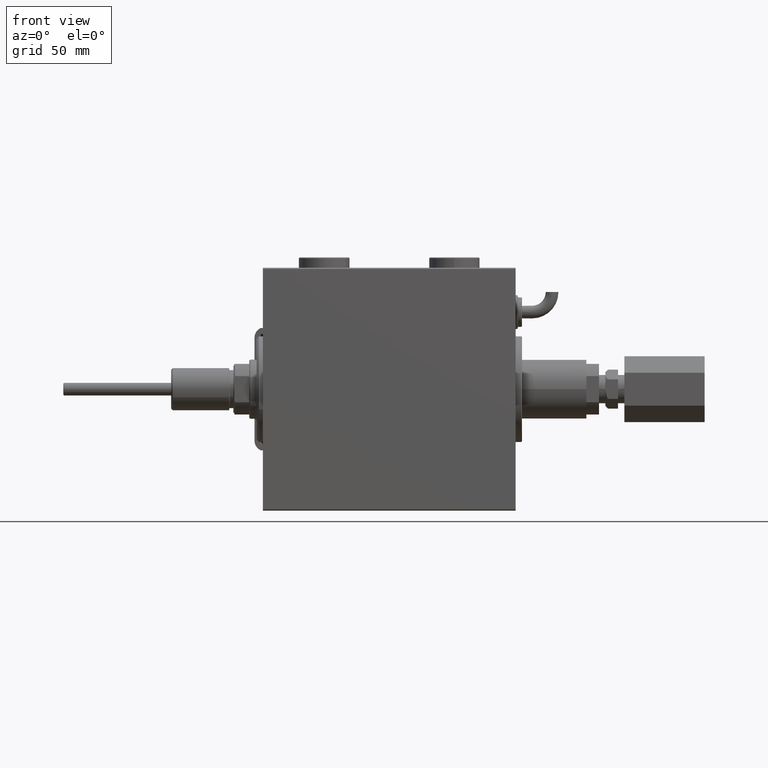
[diagram: clean part render]
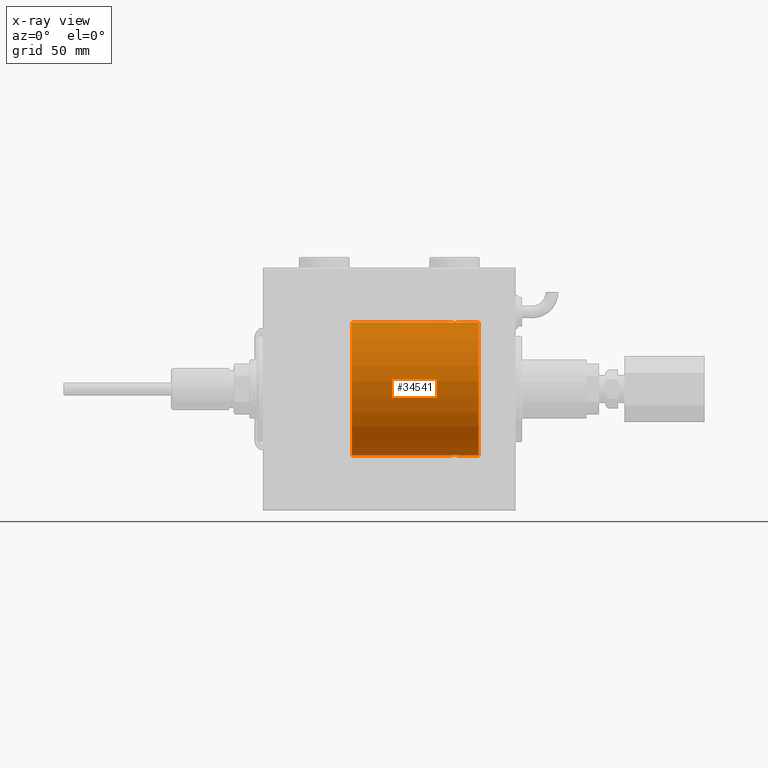
[diagram: x-ray — body ghosted, one internal face saturated and labeled with its STEP entity id]
A machine part, front view, then the same camera in x-ray: the body is ghosted and one INTERNAL B-rep face — a face not visible from any outside direction — is saturated and labeled: STEP entity #34541.
In plain terms, the highlighted cylindrical surface (partial cylindrical patch) has radius 31.5 mm, axis along (-1, -0, -0).
Its self-contained STEP definition (entity closure, byte-faithful):
#374 = CIRCLE ( 'NONE', #58673, 31.50000000000000000 ) ;
#966 = DIRECTION ( 'NONE',  ( -1.000000000000000000, -0.000000000000000000, -0.000000000000000000 ) ) ;
#1350 = EDGE_CURVE ( 'NONE', #42512, #30418, #57267, .T. ) ;
#2494 = CARTESIAN_POINT ( 'NONE',  ( 87.71898490608482746, -0.3904857149112073711, 31.49817436802766935 ) ) ;
#2675 = CARTESIAN_POINT ( 'NONE',  ( 92.68460359924667102, -2.258226318633793195, -31.41925597582825702 ) ) ;
#2731 = CARTESIAN_POINT ( 'NONE',  ( 87.70000000000000284, -2.116947682205846230E-23, 31.50000000000000000 ) ) ;
#2811 = CARTESIAN_POINT ( 'NONE',  ( 91.09114547339942192, -2.980809450819711159, 31.35867074198615967 ) ) ;
#3428 = CARTESIAN_POINT ( 'NONE',  ( 88.09582218725273606, -1.502389880413010026, 31.46458023642405877 ) ) ;
#4056 = VERTEX_POINT ( 'NONE', #2731 ) ;
#4175 = CARTESIAN_POINT ( 'NONE',  ( 102.2000000000000028, 3.857637417314162689E-15, -31.50000000000000000 ) ) ;
#4274 = CARTESIAN_POINT ( 'NONE',  ( 42.20000000000000284, 0.000000000000000000, 31.50000000000000000 ) ) ;
#5185 = LINE ( 'NONE', #14985, #17229 ) ;
#6799 = CARTESIAN_POINT ( 'NONE',  ( 93.30417781274726963, -1.502389880412997591, -31.46458023642405166 ) ) ;
#6927 = EDGE_CURVE ( 'NONE', #42662, #51663, #11869, .T. ) ;
#7103 = CARTESIAN_POINT ( 'NONE',  ( 88.44175498096734600, -1.984587626072093824, -31.43772577203672469 ) ) ;
#7133 = CARTESIAN_POINT ( 'NONE',  ( 102.2000000000000028, 3.857637417314162689E-15, -31.50000000000000000 ) ) ;
#7415 = CARTESIAN_POINT ( 'NONE',  ( 88.87295774629731682, -2.387531469909793813, -31.40957782495775419 ) ) ;
#7552 = CARTESIAN_POINT ( 'NONE',  ( 88.86956308512999669, -2.384935707362449087, 31.40977595730572958 ) ) ;
#7726 = CARTESIAN_POINT ( 'NONE',  ( 93.08501442276926241, -1.830470878313876559, -31.44719957596828763 ) ) ;
#7860 = CARTESIAN_POINT ( 'NONE',  ( 90.30465888999908941, -2.980257240990066947, 31.35872356503798031 ) ) ;
#8031 = CARTESIAN_POINT ( 'NONE',  ( 88.00470357640989505, -1.331741824817676223, -31.47235367475392920 ) ) ;
#8164 = CARTESIAN_POINT ( 'NONE',  ( 87.85339536257501436, -0.9669616078782070634, 31.48567319468626735 ) ) ;
#8312 = CARTESIAN_POINT ( 'NONE',  ( 102.2000000000000028, 0.000000000000000000, 0.000000000000000000 ) ) ;
#11219 = CARTESIAN_POINT ( 'NONE',  ( 93.70000000000000284, 3.857637396144153386E-15, -31.50000000000000000 ) ) ;
#11277 = CARTESIAN_POINT ( 'NONE',  ( 42.20000000000000284, 3.857637417314162689E-15, -31.50000000000000000 ) ) ;
#11558 = DIRECTION ( 'NONE',  ( -1.000000000000000000, -0.000000000000000000, -0.000000000000000000 ) ) ;
#11869 = LINE ( 'NONE', #7133, #30825 ) ;
#12293 = CARTESIAN_POINT ( 'NONE',  ( 87.70000000000000284, -2.116947682205846230E-23, 31.50000000000000000 ) ) ;
#14985 = CARTESIAN_POINT ( 'NONE',  ( 102.2000000000000028, 0.000000000000000000, 31.50000000000000000 ) ) ;
#16265 = CARTESIAN_POINT ( 'NONE',  ( 87.70000000000000284, -0.3965830985361892824, -31.50000000000000000 ) ) ;
#17023 = CARTESIAN_POINT ( 'NONE',  ( 92.52704225370271729, -2.387531469909779158, 31.40957782495775419 ) ) ;
#17229 = VECTOR ( 'NONE', #54067, 1000.000000000000000 ) ;
#17334 = CARTESIAN_POINT ( 'NONE',  ( 93.70000000000000284, -2.415502498297804861E-16, 31.50000000000000000 ) ) ;
#17504 = CARTESIAN_POINT ( 'NONE',  ( 92.96095462456129610, -1.981494824113335218, -31.43792153503155973 ) ) ;
#17812 = CYLINDRICAL_SURFACE ( 'NONE', #56105, 31.50000000000000000 ) ;
#17945 = EDGE_CURVE ( 'NONE', #4056, #39230, #44179, .T. ) ;
#19662 = VECTOR ( 'NONE', #52849, 1000.000000000000000 ) ;
#19748 = CARTESIAN_POINT ( 'NONE',  ( 93.60419450738055502, -0.7775502215293849106, -31.49099686045558144 ) ) ;
#20996 = CARTESIAN_POINT ( 'NONE',  ( 93.68101509391517823, -0.3904857149112009873, -31.49817436802766935 ) ) ;
#21052 = B_SPLINE_CURVE_WITH_KNOTS ( 'NONE', 3,
 ( #11219, #30447, #20996, #19748, #50933, #26958, #6799, #7726, #17504, #2675, #27259, #60686, #55037, #35489, #26017, #50313, #46200, #50615, #60392, #45265, #45887, #41461, #60068, #7415, #54725, #7103, #21304, #30758, #8031, #51243, #16265, #46508 ),
 .UNSPECIFIED., .F., .F.,
 ( 4, 2, 2, 2, 2, 2, 2, 2, 2, 2, 2, 2, 2, 2, 2, 4 ),
 ( 0.009384682587134676041, 0.009971088165454077001, 0.01055749374377347796, 0.01114389932209287892, 0.01173030490041227988, 0.01231671047873168258, 0.01290311605705108354, 0.01348952163537048624, 0.01407592721368988720, 0.01466233279200928816, 0.01524873837032868912, 0.01583514394864809008, 0.01642154952696749104, 0.01700795510528689547, 0.01759436068360629296, 0.01876717184024510182 ),
 .UNSPECIFIED. ) ;
#21067 = EDGE_CURVE ( 'NONE', #32749, #41365, #5185, .T. ) ;
#21304 = CARTESIAN_POINT ( 'NONE',  ( 88.31753127733372821, -1.833765390051066424, -31.44700610425690002 ) ) ;
#21435 = CARTESIAN_POINT ( 'NONE',  ( 92.02865414687508405, -2.696917666262913738, 31.38442820068732075 ) ) ;
#21749 = CARTESIAN_POINT ( 'NONE',  ( 89.73055544341482914, -2.845838211243349569, 31.37127560316188024 ) ) ;
#22061 = CARTESIAN_POINT ( 'NONE',  ( 91.66515729810639357, -2.847307171789044133, 31.37114183851420890 ) ) ;
#22362 = CARTESIAN_POINT ( 'NONE',  ( 89.92118087357684431, -2.903733559410697662, 31.36590199989305106 ) ) ;
#22498 = DIRECTION ( 'NONE',  ( -1.000000000000000000, 0.000000000000000000, 0.000000000000000000 ) ) ;
#22673 = CARTESIAN_POINT ( 'NONE',  ( 88.43904537543868116, -1.981494824113344322, 31.43792153503156683 ) ) ;
#24753 = ORIENTED_EDGE ( 'NONE', *, *, #52089, .F. ) ;
#25629 = EDGE_CURVE ( 'NONE', #51663, #39230, #41618, .T. ) ;
#26017 = CARTESIAN_POINT ( 'NONE',  ( 91.47881912642321822, -2.903733559410697662, -31.36590199989304395 ) ) ;
#26150 = CARTESIAN_POINT ( 'NONE',  ( 88.00285761163301856, -1.328004386210315024, 31.47251238182141719 ) ) ;
#26781 = CARTESIAN_POINT ( 'NONE',  ( 89.36760041900836882, -2.695056442718549494, 31.38458855656185875 ) ) ;
#26958 = CARTESIAN_POINT ( 'NONE',  ( 93.39714238836697291, -1.328004386210309251, -31.47251238182140298 ) ) ;
#27259 = CARTESIAN_POINT ( 'NONE',  ( 92.53043691487003741, -2.384935707362453527, -31.40977595730572958 ) ) ;
#27575 = ORIENTED_EDGE ( 'NONE', *, *, #53759, .T. ) ;
#28561 = CARTESIAN_POINT ( 'NONE',  ( 102.2000000000000028, 3.857637417314162689E-15, -31.50000000000000000 ) ) ;
#29207 = CARTESIAN_POINT ( 'NONE',  ( 93.70000000000000284, -2.415502498297804861E-16, 31.50000000000000000 ) ) ;
#30418 = VERTEX_POINT ( 'NONE', #52567 ) ;
#30447 = CARTESIAN_POINT ( 'NONE',  ( 93.70000000000001705, -0.1958045626907428394, -31.50000000000000000 ) ) ;
#30758 = CARTESIAN_POINT ( 'NONE',  ( 88.09807859560848442, -1.506272792558350559, -31.46439306106695710 ) ) ;
#30825 = VECTOR ( 'NONE', #11558, 1000.000000000000000 ) ;
#30892 = CARTESIAN_POINT ( 'NONE',  ( 93.70000000000000284, -0.3965830985361750161, 31.50000000000000000 ) ) ;
#31825 = CARTESIAN_POINT ( 'NONE',  ( 88.31498557723072906, -1.830470878313887884, 31.44719957596828053 ) ) ;
#32132 = CARTESIAN_POINT ( 'NONE',  ( 87.70000000000000284, -0.1958045626907495562, 31.50000000000000000 ) ) ;
#32749 = VERTEX_POINT ( 'NONE', #42567 ) ;
#34001 = ORIENTED_EDGE ( 'NONE', *, *, #25629, .T. ) ;
#34541 = ADVANCED_FACE ( 'NONE', ( #51546 ), #17812, .F. ) ;
#35331 = CARTESIAN_POINT ( 'NONE',  ( 102.2000000000000028, 0.000000000000000000, 31.50000000000000000 ) ) ;
#35489 = CARTESIAN_POINT ( 'NONE',  ( 91.66944455658521917, -2.845838211243349569, -31.37127560316186603 ) ) ;
#36200 = ORIENTED_EDGE ( 'NONE', *, *, #60026, .T. ) ;
#36853 = CARTESIAN_POINT ( 'NONE',  ( 92.68143462873044314, -2.261012035264784892, 31.41905495618427935 ) ) ;
#37698 = EDGE_LOOP ( 'NONE', ( #24753, #39731, #27575, #53486, #34001, #51023, #36200, #41062 ) ) ;
#39230 = VERTEX_POINT ( 'NONE', #4274 ) ;
#39640 = AXIS2_PLACEMENT_3D ( 'NONE', #51807, #22498, #46164 ) ;
#39731 = ORIENTED_EDGE ( 'NONE', *, *, #1350, .T. ) ;
#40669 = CARTESIAN_POINT ( 'NONE',  ( 93.62020662950043004, -0.7905881588836165541, 31.49214662150069088 ) ) ;
#41062 = ORIENTED_EDGE ( 'NONE', *, *, #21067, .F. ) ;
#41292 = CARTESIAN_POINT ( 'NONE',  ( 92.95824501903267389, -1.984587626072075617, 31.43772577203671759 ) ) ;
#41365 = VERTEX_POINT ( 'NONE', #29207 ) ;
#41461 = CARTESIAN_POINT ( 'NONE',  ( 89.37134585312492163, -2.696917666262926172, -31.38442820068732075 ) ) ;
#41600 = CARTESIAN_POINT ( 'NONE',  ( 91.47469094434374881, -2.904836261170115730, 31.36579955910872997 ) ) ;
#41618 = CIRCLE ( 'NONE', #39640, 31.50000000000000000 ) ;
#42062 = DIRECTION ( 'NONE',  ( 0.000000000000000000, 0.000000000000000000, 1.000000000000000000 ) ) ;
#42512 = VERTEX_POINT ( 'NONE', #4175 ) ;
#42567 = CARTESIAN_POINT ( 'NONE',  ( 102.2000000000000028, 0.000000000000000000, 31.50000000000000000 ) ) ;
#42662 = VERTEX_POINT ( 'NONE', #44846 ) ;
#44179 = LINE ( 'NONE', #35331, #52315 ) ;
#44846 = CARTESIAN_POINT ( 'NONE',  ( 87.70000000000000284, -1.457662500692042870E-14, -31.50000000000000000 ) ) ;
#45265 = CARTESIAN_POINT ( 'NONE',  ( 89.92530905565628530, -2.904836261170123279, -31.36579955910873707 ) ) ;
#45706 = CARTESIAN_POINT ( 'NONE',  ( 93.30192140439156390, -1.506272792558327245, 31.46439306106695710 ) ) ;
#45869 = DIRECTION ( 'NONE',  ( -1.000000000000000000, 0.000000000000000000, 0.000000000000000000 ) ) ;
#45887 = CARTESIAN_POINT ( 'NONE',  ( 89.73484270189362633, -2.847307171789055236, -31.37114183851420179 ) ) ;
#46024 = CARTESIAN_POINT ( 'NONE',  ( 88.71539640075336308, -2.258226318633800300, 31.41925597582826413 ) ) ;
#46164 = DIRECTION ( 'NONE',  ( 0.000000000000000000, 0.000000000000000000, 1.000000000000000000 ) ) ;
#46200 = CARTESIAN_POINT ( 'NONE',  ( 90.90046458974094890, -2.999845816735311477, -31.35683219171744796 ) ) ;
#46508 = CARTESIAN_POINT ( 'NONE',  ( 87.70000000000000284, -1.457662500692042870E-14, -31.50000000000000000 ) ) ;
#46513 = DIRECTION ( 'NONE',  ( 0.000000000000000000, 0.000000000000000000, 1.000000000000000000 ) ) ;
#46641 = CARTESIAN_POINT ( 'NONE',  ( 90.89582294439442478, -3.000152387858496805, 31.35680286115500337 ) ) ;
#50313 = CARTESIAN_POINT ( 'NONE',  ( 91.09534111000094470, -2.980257240990070056, -31.35872356503798741 ) ) ;
#50615 = CARTESIAN_POINT ( 'NONE',  ( 90.50417705560563775, -3.000152387858503022, -31.35680286115500337 ) ) ;
#50933 = CARTESIAN_POINT ( 'NONE',  ( 93.54660463742500554, -0.9669616078782005131, -31.48567319468627446 ) ) ;
#51023 = ORIENTED_EDGE ( 'NONE', *, *, #17945, .F. ) ;
#51070 = CARTESIAN_POINT ( 'NONE',  ( 90.49953541025904258, -2.999845816735307036, 31.35683219171744796 ) ) ;
#51243 = CARTESIAN_POINT ( 'NONE',  ( 87.77979337049957564, -0.7905881588836303209, -31.49214662150069799 ) ) ;
#51248 = DIRECTION ( 'NONE',  ( -1.000000000000000000, -0.000000000000000000, -0.000000000000000000 ) ) ;
#51546 = FACE_OUTER_BOUND ( 'NONE', #37698, .T. ) ;
#51663 = VERTEX_POINT ( 'NONE', #11277 ) ;
#51807 = CARTESIAN_POINT ( 'NONE',  ( 42.20000000000000284, 0.000000000000000000, 0.000000000000000000 ) ) ;
#52089 = EDGE_CURVE ( 'NONE', #42512, #32749, #374, .T. ) ;
#52315 = VECTOR ( 'NONE', #966, 1000.000000000000000 ) ;
#52567 = CARTESIAN_POINT ( 'NONE',  ( 93.70000000000000284, 3.857637396144153386E-15, -31.50000000000000000 ) ) ;
#52849 = DIRECTION ( 'NONE',  ( -1.000000000000000000, -0.000000000000000000, -0.000000000000000000 ) ) ;
#53486 = ORIENTED_EDGE ( 'NONE', *, *, #6927, .T. ) ;
#53759 = EDGE_CURVE ( 'NONE', #30418, #42662, #21052, .T. ) ;
#54067 = DIRECTION ( 'NONE',  ( -1.000000000000000000, -0.000000000000000000, -0.000000000000000000 ) ) ;
#54725 = CARTESIAN_POINT ( 'NONE',  ( 88.71856537126957676, -2.261012035264801323, -31.41905495618427935 ) ) ;
#55037 = CARTESIAN_POINT ( 'NONE',  ( 92.03239958099167950, -2.695056442718548606, -31.38458855656186941 ) ) ;
#55491 = CARTESIAN_POINT ( 'NONE',  ( 93.08246872266634853, -1.833765390051044442, 31.44700610425689291 ) ) ;
#56105 = AXIS2_PLACEMENT_3D ( 'NONE', #60690, #51248, #46513 ) ;
#56282 = B_SPLINE_CURVE_WITH_KNOTS ( 'NONE', 3,
 ( #12293, #32132, #2494, #59897, #8164, #26150, #3428, #31825, #22673, #46024, #7552, #59579, #26781, #21749, #22362, #7860, #51070, #46641, #2811, #41600, #22061, #21435, #60821, #17023, #36853, #41292, #55491, #45706, #60519, #40669, #30892, #17334 ),
 .UNSPECIFIED., .F., .F.,
 ( 4, 2, 2, 2, 2, 2, 2, 2, 2, 2, 2, 2, 2, 2, 2, 4 ),
 ( 0.009384682587134660428, 0.009971088165454063124, 0.01055749374377346582, 0.01114389932209286851, 0.01173030490041227121, 0.01231671047873167217, 0.01290311605705107313, 0.01348952163537047583, 0.01407592721368987679, 0.01466233279200927775, 0.01524873837032867871, 0.01583514394864807967, 0.01642154952696748410, 0.01700795510528688506, 0.01759436068360628602, 0.01876717184024507407 ),
 .UNSPECIFIED. ) ;
#57267 = LINE ( 'NONE', #28561, #19662 ) ;
#58673 = AXIS2_PLACEMENT_3D ( 'NONE', #8312, #45869, #42062 ) ;
#59579 = CARTESIAN_POINT ( 'NONE',  ( 89.19543714993000094, -2.602826974226406076, 31.39247100434484850 ) ) ;
#59897 = CARTESIAN_POINT ( 'NONE',  ( 87.79580549261942224, -0.7775502215293907948, 31.49099686045558855 ) ) ;
#60026 = EDGE_CURVE ( 'NONE', #4056, #41365, #56282, .T. ) ;
#60068 = CARTESIAN_POINT ( 'NONE',  ( 89.19901843703853217, -2.604888532024811187, -31.39229907792057972 ) ) ;
#60392 = CARTESIAN_POINT ( 'NONE',  ( 90.30885452660058377, -2.980809450819718709, -31.35867074198615256 ) ) ;
#60519 = CARTESIAN_POINT ( 'NONE',  ( 93.39529642359015327, -1.331741824817663122, 31.47235367475394341 ) ) ;
#60686 = CARTESIAN_POINT ( 'NONE',  ( 92.20456285006999053, -2.602826974226412737, -31.39247100434485560 ) ) ;
#60690 = CARTESIAN_POINT ( 'NONE',  ( 102.2000000000000028, 0.000000000000000000, 0.000000000000000000 ) ) ;
#60821 = CARTESIAN_POINT ( 'NONE',  ( 92.20098156296147351, -2.604888532024798309, 31.39229907792057972 ) ) ;